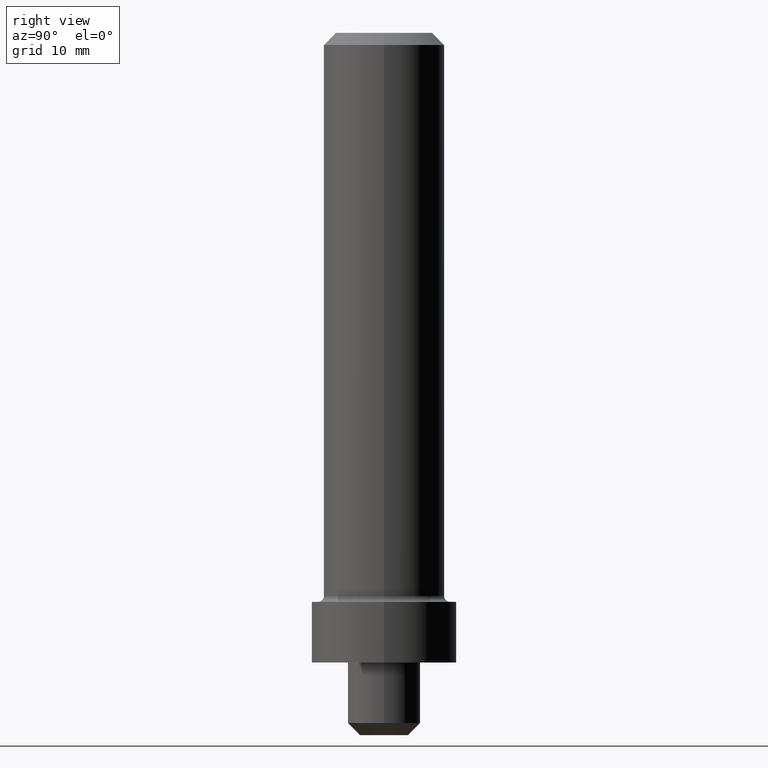
[diagram: clean part render]
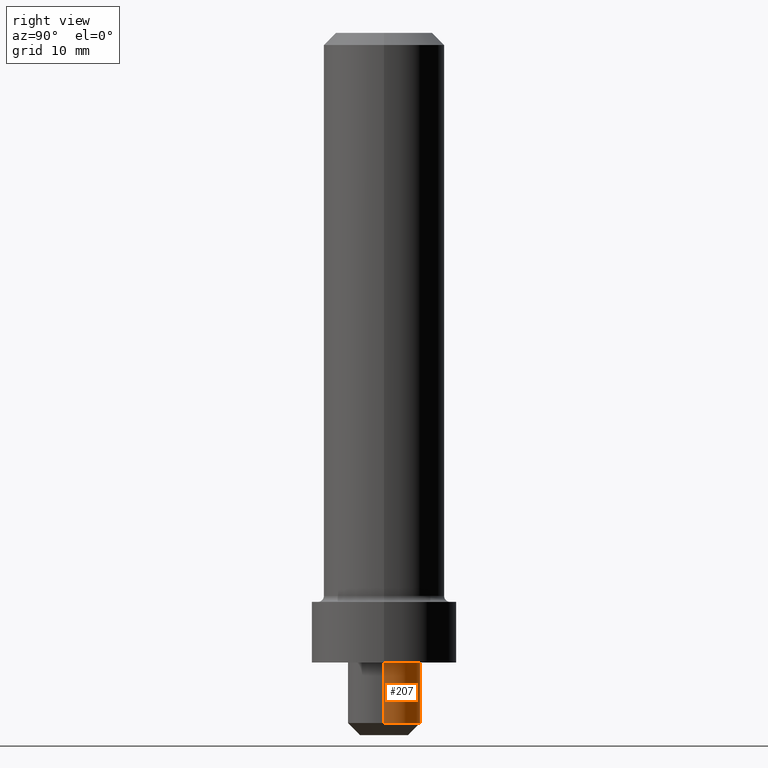
[diagram: same view with one face highlighted and labeled with its STEP entity id]
A machine part, right view. The second image highlights one B-rep face of the part: STEP entity #207.
In plain terms, the highlighted cylindrical surface (edge-blend (fillet) strip) has radius 3 mm, axis along (-0, -0, 1).
Its self-contained STEP definition (entity closure, byte-faithful):
#135=EDGE_CURVE('NONE',#155,#191,#339,.T.);
#155=VERTEX_POINT('NONE',#362);
#157=EDGE_CURVE('NONE',#291,#155,#364,.T.);
#181=VERTEX_POINT('NONE',#396);
#191=VERTEX_POINT('NONE',#406);
#193=EDGE_CURVE('NONE',#291,#181,#408,.T.);
#207=ADVANCED_FACE('NONE',(#423),#424,.T.);
#261=EDGE_CURVE('NONE',#181,#191,#487,.T.);
#291=VERTEX_POINT('NONE',#519);
#339=CIRCLE('',#567,3.0);
#362=CARTESIAN_POINT('',(3.0,0.0,0.0));
#364=LINE('',#597,#598);
#396=CARTESIAN_POINT('',(-3.0,3.67381906146713E-016,-5.00000000000001));
#406=CARTESIAN_POINT('',(-3.0,3.67381906146713E-016,0.0));
#408=CIRCLE('',#650,3.0);
#423=FACE_OUTER_BOUND('',#666,.T.);
#424=CYLINDRICAL_SURFACE('',#667,3.0);
#487=LINE('',#746,#747);
#519=CARTESIAN_POINT('',(3.0,0.0,-5.00000000000001));
#567=AXIS2_PLACEMENT_3D('',#833,#834,#835);
#597=CARTESIAN_POINT('',(3.0,0.0,44.3839792060492));
#598=VECTOR('',#872,1000.0);
#650=AXIS2_PLACEMENT_3D('',#932,#933,#934);
#666=EDGE_LOOP('',(#951,#952,#953,#954));
#667=AXIS2_PLACEMENT_3D('',#955,#956,#957);
#746=CARTESIAN_POINT('',(-3.0,3.67381906146713E-016,44.3839792060492));
#747=VECTOR('',#1042,1000.0);
#833=CARTESIAN_POINT('',(0.0,0.0,0.0));
#834=DIRECTION('',(0.0,0.0,1.0));
#835=DIRECTION('',(1.0,0.0,0.0));
#872=DIRECTION('',(-0.0,0.0,1.0));
#932=CARTESIAN_POINT('',(0.0,0.0,-5.00000000000001));
#933=DIRECTION('',(0.0,0.0,1.0));
#934=DIRECTION('',(1.0,0.0,0.0));
#951=ORIENTED_EDGE('',*,*,#193,.T.);
#952=ORIENTED_EDGE('',*,*,#261,.T.);
#953=ORIENTED_EDGE('',*,*,#135,.F.);
#954=ORIENTED_EDGE('',*,*,#157,.F.);
#955=CARTESIAN_POINT('',(0.0,0.0,44.3839792060492));
#956=DIRECTION('',(-0.0,-0.0,1.0));
#957=DIRECTION('',(1.0,0.0,0.0));
#1042=DIRECTION('',(-0.0,0.0,1.0));